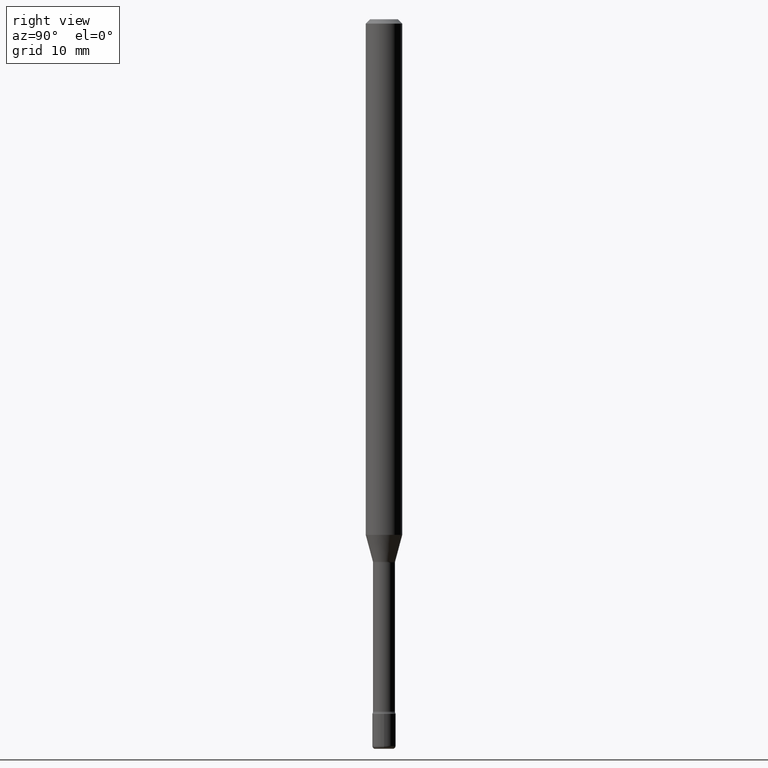
[diagram: clean part render]
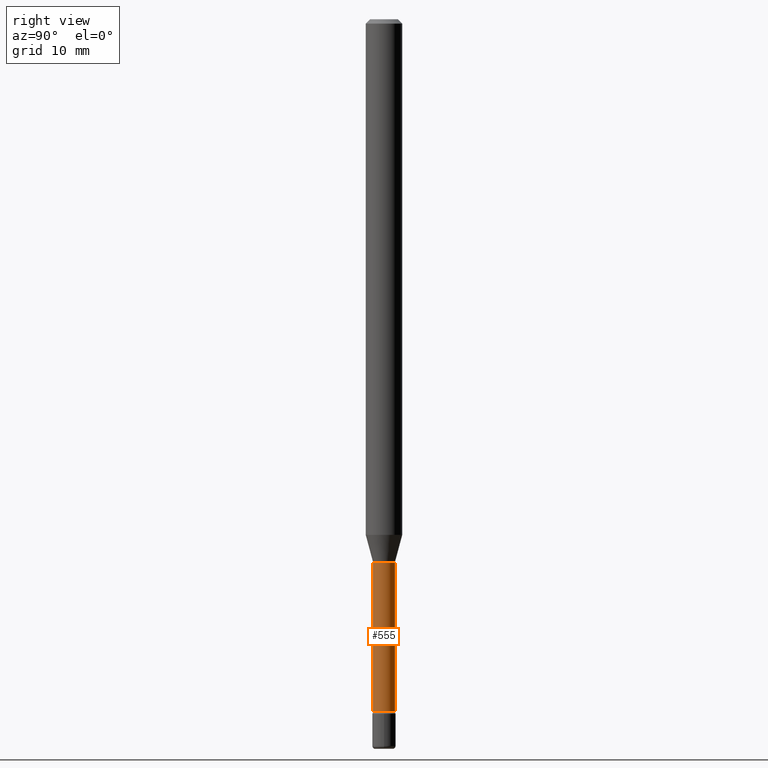
[diagram: same view with one face highlighted and labeled with its STEP entity id]
A machine part, right view. The second image highlights one B-rep face of the part: STEP entity #555.
In plain terms, the highlighted cylindrical surface (edge-blend (fillet) strip) has radius 0.955 mm, axis along (-0, 0, 1).
Its self-contained STEP definition (entity closure, byte-faithful):
#1 = LINE ( 'NONE', #182, #111 ) ;
#7 = CARTESIAN_POINT ( 'NONE',  ( 2.756905814749770095E-16, 0.03759999999999177195, -2.371861204020250025 ) ) ;
#11 = ORIENTED_EDGE ( 'NONE', *, *, #105, .F. ) ;
#20 = AXIS2_PLACEMENT_3D ( 'NONE', #414, #147, #150 ) ;
#32 = CIRCLE ( 'NONE', #20, 0.03760000000000000842 ) ;
#36 = EDGE_LOOP ( 'NONE', ( #443, #380, #332, #11 ) ) ;
#67 = CYLINDRICAL_SURFACE ( 'NONE', #490, 0.03760000000000002923 ) ;
#69 = EDGE_CURVE ( 'NONE', #497, #344, #340, .T. ) ;
#105 = EDGE_CURVE ( 'NONE', #497, #515, #1, .T. ) ;
#111 = VECTOR ( 'NONE', #392, 39.37007874015748143 ) ;
#141 = DIRECTION ( 'NONE',  ( -6.982962677686265922E-15, -1.000000000000000000, 3.491701459975280701E-15 ) ) ;
#147 = DIRECTION ( 'NONE',  ( -2.445315096420110410E-29, 3.491701459975279518E-15, 1.000000000000000000 ) ) ;
#150 = DIRECTION ( 'NONE',  ( -6.982962677686265922E-15, -1.000000000000000000, 0.000000000000000000 ) ) ;
#158 = DIRECTION ( 'NONE',  ( -2.445315096420110130E-29, 3.491701459975279518E-15, 1.000000000000000000 ) ) ;
#182 = CARTESIAN_POINT ( 'NONE',  ( -2.625593966810038003E-16, -0.03760000000000002923, 6.093613737863167448E-16 ) ) ;
#197 = AXIS2_PLACEMENT_3D ( 'NONE', #211, #309, #319 ) ;
#203 = EDGE_CURVE ( 'NONE', #515, #204, #32, .T. ) ;
#204 = VERTEX_POINT ( 'NONE', #377 ) ;
#211 = CARTESIAN_POINT ( 'NONE',  ( 5.799948008803896804E-29, -8.281831228936231021E-15, -2.371861204020250025 ) ) ;
#244 = CARTESIAN_POINT ( 'NONE',  ( -1.169113584055446105E-44, 1.669184350826100908E-30, 4.780733988912460139E-16 ) ) ;
#254 = CARTESIAN_POINT ( 'NONE',  ( -2.625593966809580957E-16, -0.03760000000000650322, -1.861974787463811065 ) ) ;
#284 = EDGE_CURVE ( 'NONE', #344, #204, #446, .T. ) ;
#309 = DIRECTION ( 'NONE',  ( -2.445315096420110410E-29, 3.491701459975279518E-15, 1.000000000000000000 ) ) ;
#319 = DIRECTION ( 'NONE',  ( -6.982962677686265922E-15, -1.000000000000000000, 0.000000000000000000 ) ) ;
#332 = ORIENTED_EDGE ( 'NONE', *, *, #203, .F. ) ;
#340 = CIRCLE ( 'NONE', #197, 0.03760000000000005699 ) ;
#344 = VERTEX_POINT ( 'NONE', #7 ) ;
#366 = CARTESIAN_POINT ( 'NONE',  ( 2.671640686457978776E-16, 0.03760000000000002923, 3.467854239961754309E-16 ) ) ;
#377 = CARTESIAN_POINT ( 'NONE',  ( 2.671640686458558589E-16, 0.03759999999999350667, -1.861974787463811065 ) ) ;
#380 = ORIENTED_EDGE ( 'NONE', *, *, #284, .T. ) ;
#392 = DIRECTION ( 'NONE',  ( -2.445315096420110130E-29, 3.491701459975279518E-15, 1.000000000000000000 ) ) ;
#397 = DIRECTION ( 'NONE',  ( -2.445315096420110410E-29, 3.491701459975279518E-15, 1.000000000000000000 ) ) ;
#414 = CARTESIAN_POINT ( 'NONE',  ( 4.553115056938883903E-29, -6.501460083824549648E-15, -1.861974787463811065 ) ) ;
#436 = CARTESIAN_POINT ( 'NONE',  ( -2.625593966809460162E-16, -0.03760000000000833509, -2.371861204020250025 ) ) ;
#443 = ORIENTED_EDGE ( 'NONE', *, *, #69, .T. ) ;
#446 = LINE ( 'NONE', #366, #488 ) ;
#466 = FACE_OUTER_BOUND ( 'NONE', #36, .T. ) ;
#488 = VECTOR ( 'NONE', #158, 39.37007874015748143 ) ;
#490 = AXIS2_PLACEMENT_3D ( 'NONE', #244, #397, #141 ) ;
#497 = VERTEX_POINT ( 'NONE', #436 ) ;
#515 = VERTEX_POINT ( 'NONE', #254 ) ;
#555 = ADVANCED_FACE ( 'NONE', ( #466 ), #67, .T. ) ;